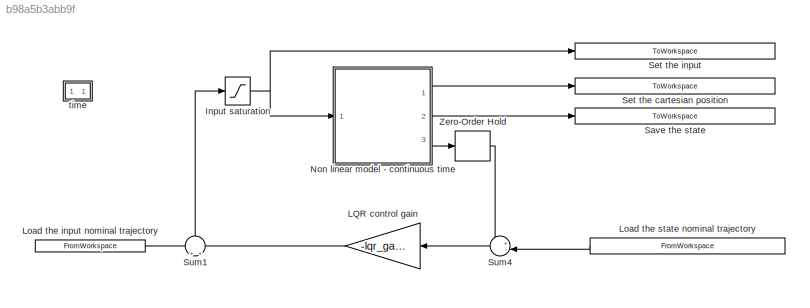
MODEL slx_b98a5b3abb9f
KIND model
CONFIG AbsTol = auto
CONFIG FixedStep = auto
CONFIG MaxStep = 0.01
CONFIG MinStep = auto
CONFIG RelTol = 1e-3
CONFIG SampleTimeConstraint = Unconstrained
CONFIG Solver = ode45
CONFIG SolverMode = Auto
CONFIG SolverName = ode45
CONFIG StartTime = 0.0
CONFIG StopTime = simulation_time
BLOCK [Saturate] Input saturation
  InputPortMap = u0
  LowerLimit = [0;-pi/4]
  Ports = [1, 1]
  UpperLimit = [Inf;pi/4]
BLOCK [Gain] LQR control gain
  Gain = -lqr_gain
  Multiplication = Matrix(K*u)
  OutDataTypeStr = Inherit: Inherit via internal rule
  ParamDataTypeStr = Inherit: Inherit via internal rule
  SaturateOnIntegerOverflow = off
BLOCK [FromWorkspace] Load the input nominal trajectory
  OutputAfterFinalValue = Holding final value
  SampleTime = sampling_time
  VariableName = nominal_trajectory_u
  ZeroCross = on
BLOCK [FromWorkspace] Load the state nominal trajectory 
  OutputAfterFinalValue = Holding final value
  SampleTime = sampling_time
  VariableName = nominal_trajectory_x
  ZeroCross = on
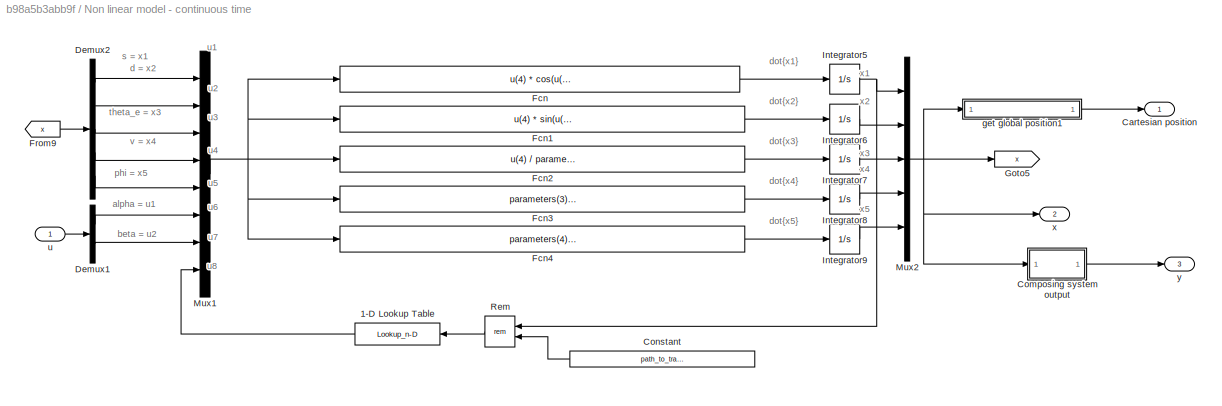
BLOCK [SubSystem] Non linear model - continuous time
  Ports = [1, 3]
  RequestExecContextInheritance = off
BLOCK [Lookup_n-D] Non linear model - continuous time/1-D Lookup Table
  BreakpointsForDimension1 = path_to_track.s_coordinate
  InternalRulePriority = Speed
  NumberOfTableDimensions = 1
  Ports = [1, 1]
  RndMeth = Simplest
  Table = path_to_track.curvature
BLOCK [Outport] Non linear model - continuous time/Cartesian position 
  IconDisplay = Port number
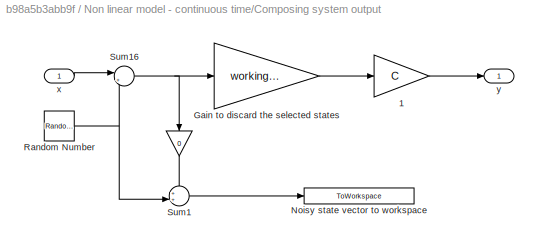
BLOCK [SubSystem] Non linear model - continuous time/Composing system output
  Ports = [1, 1]
  RequestExecContextInheritance = off
BLOCK [Gain] Non linear model - continuous time/Composing system output/ 
  Gain = 0
  OutDataTypeStr = Inherit: Inherit via internal rule
  ParamDataTypeStr = Inherit: Inherit via internal rule
  SaturateOnIntegerOverflow = off
BLOCK [Gain] Non linear model - continuous time/Composing system output/ 1
  Gain = C
  Multiplication = Matrix(K*u)
  OutDataTypeStr = Inherit: Inherit via internal rule
  ParamDataTypeStr = Inherit: Inherit via internal rule
  SaturateOnIntegerOverflow = off
BLOCK [Gain] Non linear model - continuous time/Composing system output/Gain to discard the selected states
  Gain = working_sensor
  OutDataTypeStr = Inherit: Inherit via internal rule
  ParamDataTypeStr = Inherit: Inherit via internal rule
  SaturateOnIntegerOverflow = off
BLOCK [ToWorkspace] Non linear model - continuous time/Composing system output/Noisy state vector to workspace
  MaxDataPoints = inf
  Ports = [1]
  SampleTime = -1
  VariableName = noise
BLOCK [RandomNumber] Non linear model - continuous time/Composing system output/Random Number
  Mean = noiseMod.mean
  SampleTime = 1/noiseMod.freq
  Seed = noiseMod.seed
  Variance = noiseMod.std_deviation.^2
BLOCK [Sum] Non linear model - continuous time/Composing system output/Sum1
  IconShape = round
  InputSameDT = off
  Inputs = ++|
  OutDataTypeStr = Inherit: Inherit via internal rule
  Ports = [2, 1]
  SaturateOnIntegerOverflow = off
BLOCK [Sum] Non linear model - continuous time/Composing system output/Sum16
  IconShape = round
  InputSameDT = off
  Inputs = |++
  OutDataTypeStr = Inherit: Inherit via internal rule
  Ports = [2, 1]
  SaturateOnIntegerOverflow = off
BLOCK [Inport] Non linear model - continuous time/Composing system output/x
  IconDisplay = Port number
BLOCK [Outport] Non linear model - continuous time/Composing system output/y
  IconDisplay = Port number
BLOCK [Constant] Non linear model - continuous time/Constant
  Value = path_to_track.s_coordinate(end)
BLOCK [Demux] Non linear model - continuous time/Demux1
  DisplayOption = bar
  Outputs = 2
  Ports = [1, 2]
BLOCK [Demux] Non linear model - continuous time/Demux2
  DisplayOption = bar
  Outputs = 5
  Ports = [1, 5]
BLOCK [Fcn] Non linear model - continuous time/Fcn
  Expr = u(4) * cos(u(3)) / (1 - u(8)*u(2) )
BLOCK [Fcn] Non linear model - continuous time/Fcn1
  Expr = u(4) * sin(u(3))
BLOCK [Fcn] Non linear model - continuous time/Fcn2
  Expr = u(4) / parameters(2) * tan(u(5)/16) - u(8) * u(4) * cos(u(3)) / (1 - u(8)*u(2) )
BLOCK [Fcn] Non linear model - continuous time/Fcn3
  Expr = parameters(3) * (u(6) - u(4))
BLOCK [Fcn] Non linear model - continuous time/Fcn4
  Expr = parameters(4) * (u(7) - u(5))
BLOCK [From] Non linear model - continuous time/From9
  GotoTag = x
BLOCK [Goto] Non linear model - continuous time/Goto5
  GotoTag = x
BLOCK [Integrator] Non linear model - continuous time/Integrator5
  InitialCondition = x0(1)
  Ports = [1, 1]
BLOCK [Integrator] Non linear model - continuous time/Integrator6
  InitialCondition = x0(2)
  Ports = [1, 1]
BLOCK [Integrator] Non linear model - continuous time/Integrator7
  InitialCondition = x0(3)
  Ports = [1, 1]
BLOCK [Integrator] Non linear model - continuous time/Integrator8
  InitialCondition = x0(4)
  Ports = [1, 1]
BLOCK [Integrator] Non linear model - continuous time/Integrator9
  InitialCondition = x0(5)
  Ports = [1, 1]
BLOCK [Mux] Non linear model - continuous time/Mux1
  DisplayOption = bar
  Inputs = 8
  Ports = [8, 1]
BLOCK [Mux] Non linear model - continuous time/Mux2
  DisplayOption = bar
  Inputs = 5
  Ports = [5, 1]
BLOCK [Math] Non linear model - continuous time/Rem
  Operator = rem
  Ports = [2, 1]
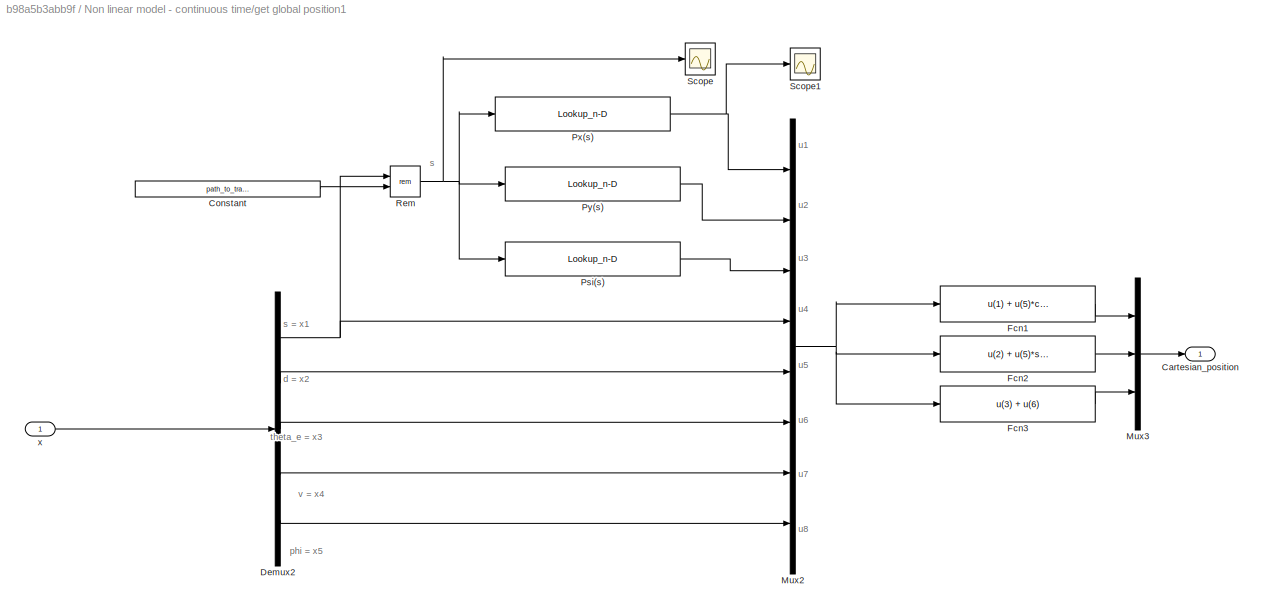
BLOCK [SubSystem] Non linear model - continuous time/get global position1
  Ports = [1, 1]
  RequestExecContextInheritance = off
BLOCK [Outport] Non linear model - continuous time/get global position1/Cartesian_position 
  IconDisplay = Port number
BLOCK [Constant] Non linear model - continuous time/get global position1/Constant
  Value = path_to_track.s_coordinate(end)
BLOCK [Demux] Non linear model - continuous time/get global position1/Demux2
  DisplayOption = bar
  Outputs = 5
  Ports = [1, 5]
BLOCK [Fcn] Non linear model - continuous time/get global position1/Fcn1
  Expr = u(1) + u(5)*cos(u(3) + pi/2)
BLOCK [Fcn] Non linear model - continuous time/get global position1/Fcn2
  Expr = u(2) + u(5)*sin(u(3) + pi/2)
BLOCK [Fcn] Non linear model - continuous time/get global position1/Fcn3
  Expr = u(3) + u(6)
BLOCK [Mux] Non linear model - continuous time/get global position1/Mux2
  DisplayOption = bar
  Inputs = 8
  Ports = [8, 1]
BLOCK [Mux] Non linear model - continuous time/get global position1/Mux3
  DisplayOption = bar
  Inputs = 3
  Ports = [3, 1]
BLOCK [Lookup_n-D] Non linear model - continuous time/get global position1/Psi(s)
  BreakpointsForDimension1 = path_to_track.s_coordinate
  InternalRulePriority = Speed
  NumberOfTableDimensions = 1
  Ports = [1, 1]
  RndMeth = Simplest
  Table = path_to_track.orientation
BLOCK [Lookup_n-D] Non linear model - continuous time/get global position1/Px(s)
  BreakpointsForDimension1 = path_to_track.s_coordinate
  InternalRulePriority = Speed
  NumberOfTableDimensions = 1
  Ports = [1, 1]
  RndMeth = Simplest
  Table = path_to_track.coordinates(:,1)
BLOCK [Lookup_n-D] Non linear model - continuous time/get global position1/Py(s)
  BreakpointsForDimension1 = path_to_track.s_coordinate
  InternalRulePriority = Speed
  NumberOfTableDimensions = 1
  Ports = [1, 1]
  RndMeth = Simplest
  Table = path_to_track.coordinates(:,2)
BLOCK [Math] Non linear model - continuous time/get global position1/Rem
  Operator = rem
  Ports = [2, 1]
BLOCK [Scope] Non linear model - continuous time/get global position1/Scope
  Floating = off
  NumInputPorts = 1
  Ports = [1]
  ScopeSpecificationString = Simulink.scopes.TimeScopeBlockCfg('CurrentConfiguration', extmgr.ConfigurationSet(extmgr.Configuration('Core','General UI',true),extmgr.Configuration('Core','Source UI',true),extmgr.Configuration('Sources','WiredSimulink',true),extmgr.Configuration('Visuals','Time Domain',true,'SerializedDisplays',{struct('MinYLimReal','-23.93468','MaxYLimReal','214.65941','YLabelReal','','MinYLimMag','0.00000','M...<+1360ch>
BLOCK [Scope] Non linear model - continuous time/get global position1/Scope1
  Floating = off
  NumInputPorts = 1
  Ports = [1]
  ScopeSpecificationString = Simulink.scopes.TimeScopeBlockCfg('CurrentConfiguration', extmgr.ConfigurationSet(extmgr.Configuration('Core','General UI',true),extmgr.Configuration('Core','Source UI',true),extmgr.Configuration('Sources','WiredSimulink',true,'DataLoggingVariableName','ScopeData1'),extmgr.Configuration('Visuals','Time Domain',true,'SerializedDisplays',{struct('MinYLimReal','9999999998.22974','MaxYLimReal','999999...<+1459ch>
BLOCK [Inport] Non linear model - continuous time/get global position1/x
  IconDisplay = Port number
BLOCK [Inport] Non linear model - continuous time/u
  IconDisplay = Port number
BLOCK [Outport] Non linear model - continuous time/x
  IconDisplay = Port number
  Port = 2
BLOCK [Outport] Non linear model - continuous time/y
  IconDisplay = Port number
  Port = 3
BLOCK [ToWorkspace] Save the state
  MaxDataPoints = inf
  Ports = [1]
  SampleTime = -1
  VariableName = state
BLOCK [ToWorkspace] Set the cartesian position
  MaxDataPoints = inf
  Ports = [1]
  SampleTime = -1
  VariableName = Cartesian_position
BLOCK [ToWorkspace] Set the input
  MaxDataPoints = inf
  Ports = [1]
  SampleTime = -1
  VariableName = input
BLOCK [Sum] Sum1
  IconShape = round
  InputSameDT = off
  Inputs = +|+
  OutDataTypeStr = Inherit: Inherit via internal rule
  Ports = [2, 1]
  SaturateOnIntegerOverflow = off
BLOCK [Sum] Sum4
  IconShape = round
  InputSameDT = off
  Inputs = +-|
  OutDataTypeStr = Inherit: Inherit via internal rule
  Ports = [2, 1]
  SaturateOnIntegerOverflow = off
BLOCK [ZeroOrderHold] Zero-Order Hold
  SampleTime = sampling_time
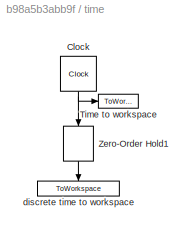
BLOCK [SubSystem] time
  Ports = []
  RequestExecContextInheritance = off
BLOCK [Clock] time/Clock
  DisplayTime = on
BLOCK [ToWorkspace] time/Time to workspace
  MaxDataPoints = inf
  Ports = [1]
  SampleTime = -1
  VariableName = time
BLOCK [ZeroOrderHold] time/Zero-Order Hold1
  SampleTime = sampling_time
BLOCK [ToWorkspace] time/discrete time to workspace
  MaxDataPoints = inf
  Ports = [1]
  SampleTime = -1
  VariableName = discrete_time
ANNOTATION Non linear model - continuous time: alpha = u1
ANNOTATION Non linear model - continuous time: beta = u2
ANNOTATION Non linear model - continuous time: d = x2
ANNOTATION Non linear model - continuous time: dot{x1}
ANNOTATION Non linear model - continuous time: dot{x2}
ANNOTATION Non linear model - continuous time: dot{x3}
ANNOTATION Non linear model - continuous time: dot{x4}
ANNOTATION Non linear model - continuous time: dot{x5}
ANNOTATION Non linear model - continuous time: phi = x5
ANNOTATION Non linear model - continuous time: s = x1
ANNOTATION Non linear model - continuous time: theta_e = x3
ANNOTATION Non linear model - continuous time: u1
ANNOTATION Non linear model - continuous time: u2
ANNOTATION Non linear model - continuous time: u3
ANNOTATION Non linear model - continuous time: u4
ANNOTATION Non linear model - continuous time: u5
ANNOTATION Non linear model - continuous time: u6
ANNOTATION Non linear model - continuous time: u7
ANNOTATION Non linear model - continuous time: u8
ANNOTATION Non linear model - continuous time: v = x4
ANNOTATION Non linear model - continuous time: x1
ANNOTATION Non linear model - continuous time: x2
ANNOTATION Non linear model - continuous time: x3
ANNOTATION Non linear model - continuous time: x4
ANNOTATION Non linear model - continuous time: x5
ANNOTATION Non linear model - continuous time/get global position1: d = x2
ANNOTATION Non linear model - continuous time/get global position1: phi = x5
ANNOTATION Non linear model - continuous time/get global position1: s
ANNOTATION Non linear model - continuous time/get global position1: s = x1
ANNOTATION Non linear model - continuous time/get global position1: theta_e = x3
ANNOTATION Non linear model - continuous time/get global position1: u1
ANNOTATION Non linear model - continuous time/get global position1: u2
ANNOTATION Non linear model - continuous time/get global position1: u3
ANNOTATION Non linear model - continuous time/get global position1: u4
ANNOTATION Non linear model - continuous time/get global position1: u5
ANNOTATION Non linear model - continuous time/get global position1: u6
ANNOTATION Non linear model - continuous time/get global position1: u7
ANNOTATION Non linear model - continuous time/get global position1: u8
ANNOTATION Non linear model - continuous time/get global position1: v = x4
NET Input saturation:1 -> Non linear model - continuous time:1, Set the input:1
LINE LQR control gain:1 -> Sum1:2
LINE Load the input nominal trajectory:1 -> Sum1:1
LINE Load the state nominal trajectory :1 -> Sum4:2
LINE Non linear model - continuous time/1-D Lookup Table:1 -> Non linear model - continuous time/Mux1:8
LINE Non linear model - continuous time/Composing system output/ 1:1 -> Non linear model - continuous time/Composing system output/y:1
LINE Non linear model - continuous time/Composing system output/ :1 -> Non linear model - continuous time/Composing system output/Sum1:1
LINE Non linear model - continuous time/Composing system output/Gain to discard the selected states:1 -> Non linear model - continuous time/Composing system output/ 1:1
NET Non linear model - continuous time/Composing system output/Random Number:1 -> Non linear model - continuous time/Composing system output/Sum16:2, Non linear model - continuous time/Composing system output/Sum1:2
NET Non linear model - continuous time/Composing system output/Sum16:1 -> Non linear model - continuous time/Composing system output/ :1, Non linear model - continuous time/Composing system output/Gain to discard the selected states:1
LINE Non linear model - continuous time/Composing system output/Sum1:1 -> Non linear model - continuous time/Composing system output/Noisy state vector to workspace:1
LINE Non linear model - continuous time/Composing system output/x:1 -> Non linear model - continuous time/Composing system output/Sum16:1
LINE Non linear model - continuous time/Composing system output:1 -> Non linear model - continuous time/y:1
LINE Non linear model - continuous time/Constant:1 -> Non linear model - continuous time/Rem:2
LINE Non linear model - continuous time/Demux1:1 -> Non linear model - continuous time/Mux1:6
LINE Non linear model - continuous time/Demux1:2 -> Non linear model - continuous time/Mux1:7
LINE Non linear model - continuous time/Demux2:1 -> Non linear model - continuous time/Mux1:1
LINE Non linear model - continuous time/Demux2:2 -> Non linear model - continuous time/Mux1:2
LINE Non linear model - continuous time/Demux2:3 -> Non linear model - continuous time/Mux1:3
LINE Non linear model - continuous time/Demux2:4 -> Non linear model - continuous time/Mux1:4
LINE Non linear model - continuous time/Demux2:5 -> Non linear model - continuous time/Mux1:5
LINE Non linear model - continuous time/Fcn1:1 -> Non linear model - continuous time/Integrator6:1
LINE Non linear model - continuous time/Fcn2:1 -> Non linear model - continuous time/Integrator7:1
LINE Non linear model - continuous time/Fcn3:1 -> Non linear model - continuous time/Integrator8:1
LINE Non linear model - continuous time/Fcn4:1 -> Non linear model - continuous time/Integrator9:1
LINE Non linear model - continuous time/Fcn:1 -> Non linear model - continuous time/Integrator5:1
LINE Non linear model - continuous time/From9:1 -> Non linear model - continuous time/Demux2:1
NET Non linear model - continuous time/Integrator5:1 -> Non linear model - continuous time/Mux2:1, Non linear model - continuous time/Rem:1
LINE Non linear model - continuous time/Integrator6:1 -> Non linear model - continuous time/Mux2:2
LINE Non linear model - continuous time/Integrator7:1 -> Non linear model - continuous time/Mux2:3
LINE Non linear model - continuous time/Integrator8:1 -> Non linear model - continuous time/Mux2:4
LINE Non linear model - continuous time/Integrator9:1 -> Non linear model - continuous time/Mux2:5
NET Non linear model - continuous time/Mux1:1 -> Non linear model - continuous time/Fcn1:1, Non linear model - continuous time/Fcn2:1, Non linear model - continuous time/Fcn3:1, Non linear model - continuous time/Fcn4:1, Non linear model - continuous time/Fcn:1
NET Non linear model - continuous time/Mux2:1 -> Non linear model - continuous time/Composing system output:1, Non linear model - continuous time/Goto5:1, Non linear model - continuous time/get global position1:1, Non linear model - continuous time/x:1
LINE Non linear model - continuous time/Rem:1 -> Non linear model - continuous time/1-D Lookup Table:1
LINE Non linear model - continuous time/get global position1/Constant:1 -> Non linear model - continuous time/get global position1/Rem:2
NET Non linear model - continuous time/get global position1/Demux2:1 -> Non linear model - continuous time/get global position1/Mux2:4, Non linear model - continuous time/get global position1/Rem:1
LINE Non linear model - continuous time/get global position1/Demux2:2 -> Non linear model - continuous time/get global position1/Mux2:5
LINE Non linear model - continuous time/get global position1/Demux2:3 -> Non linear model - continuous time/get global position1/Mux2:6
LINE Non linear model - continuous time/get global position1/Demux2:4 -> Non linear model - continuous time/get global position1/Mux2:7
LINE Non linear model - continuous time/get global position1/Demux2:5 -> Non linear model - continuous time/get global position1/Mux2:8
LINE Non linear model - continuous time/get global position1/Fcn1:1 -> Non linear model - continuous time/get global position1/Mux3:1
LINE Non linear model - continuous time/get global position1/Fcn2:1 -> Non linear model - continuous time/get global position1/Mux3:2
LINE Non linear model - continuous time/get global position1/Fcn3:1 -> Non linear model - continuous time/get global position1/Mux3:3
NET Non linear model - continuous time/get global position1/Mux2:1 -> Non linear model - continuous time/get global position1/Fcn1:1, Non linear model - continuous time/get global position1/Fcn2:1, Non linear model - continuous time/get global position1/Fcn3:1
LINE Non linear model - continuous time/get global position1/Mux3:1 -> Non linear model - continuous time/get global position1/Cartesian_position :1
LINE Non linear model - continuous time/get global position1/Psi(s):1 -> Non linear model - continuous time/get global position1/Mux2:3
NET Non linear model - continuous time/get global position1/Px(s):1 -> Non linear model - continuous time/get global position1/Mux2:1, Non linear model - continuous time/get global position1/Scope1:1
LINE Non linear model - continuous time/get global position1/Py(s):1 -> Non linear model - continuous time/get global position1/Mux2:2
NET Non linear model - continuous time/get global position1/Rem:1 -> Non linear model - continuous time/get global position1/Psi(s):1, Non linear model - continuous time/get global position1/Px(s):1, Non linear model - continuous time/get global position1/Py(s):1, Non linear model - continuous time/get global position1/Scope:1
LINE Non linear model - continuous time/get global position1/x:1 -> Non linear model - continuous time/get global position1/Demux2:1
LINE Non linear model - continuous time/get global position1:1 -> Non linear model - continuous time/Cartesian position :1
LINE Non linear model - continuous time/u:1 -> Non linear model - continuous time/Demux1:1
LINE Non linear model - continuous time:1 -> Set the cartesian position:1
LINE Non linear model - continuous time:2 -> Save the state:1
LINE Non linear model - continuous time:3 -> Zero-Order Hold:1
LINE Sum1:1 -> Input saturation:1
LINE Sum4:1 -> LQR control gain:1
LINE Zero-Order Hold:1 -> Sum4:1
NET time/Clock:1 -> time/Time to workspace:1, time/Zero-Order Hold1:1
LINE time/Zero-Order Hold1:1 -> time/discrete time to workspace:1
note: NET lines group one-source signal fan-out (src -> all destinations, sorted); 1:1 wires keep LINE
